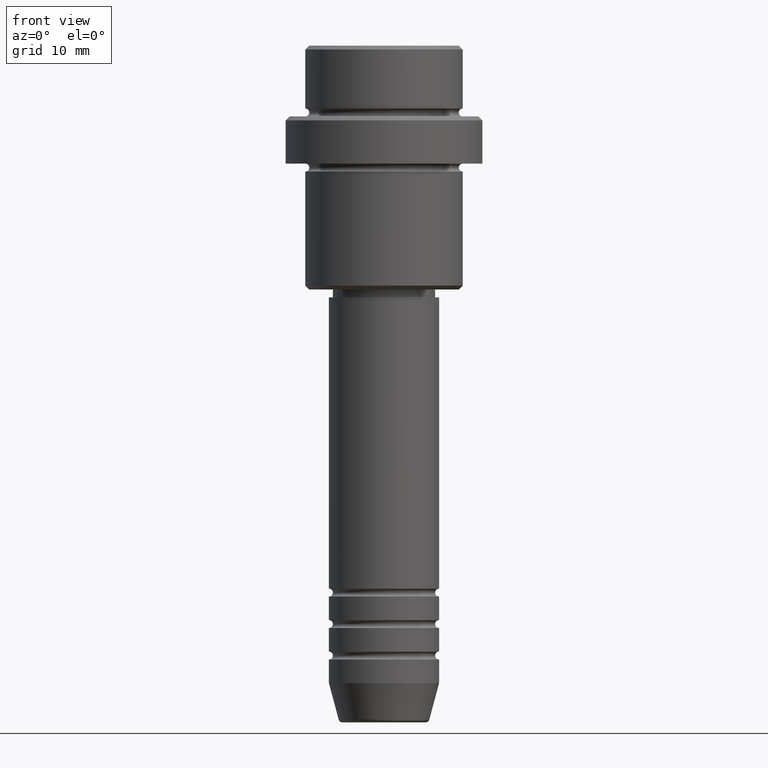
[diagram: clean part render]
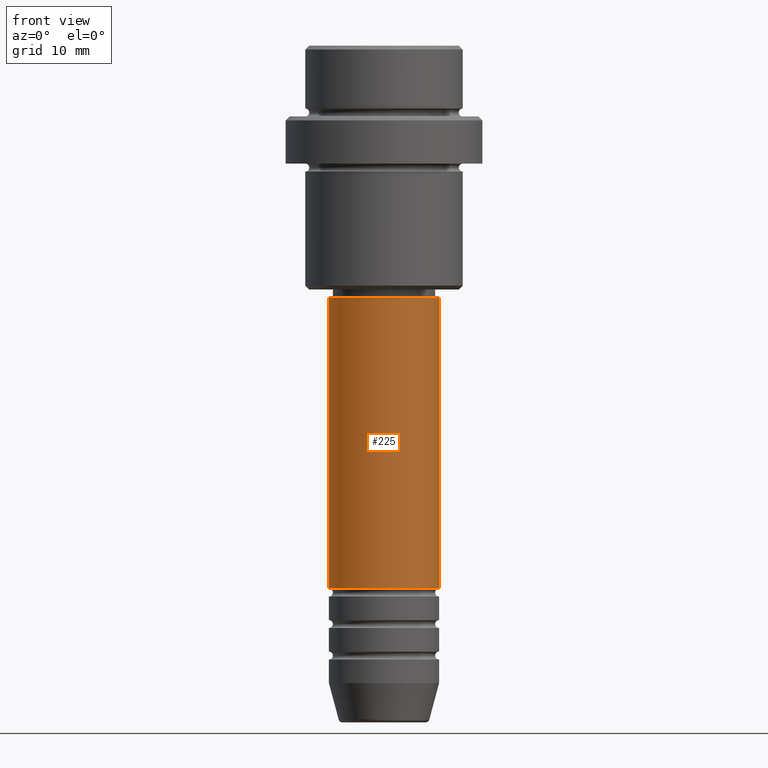
[diagram: same view with one face highlighted and labeled with its STEP entity id]
A machine part, front view. The second image highlights one B-rep face of the part: STEP entity #225.
In plain terms, the highlighted cylindrical surface (partial cylindrical patch) has radius 7 mm, axis along (-0, -0, 1).
Its self-contained STEP definition (entity closure, byte-faithful):
#21 = DIRECTION ( 'NONE',  ( 1.000000000000000000, 0.000000000000000000, 0.000000000000000000 ) ) ;
#61 = VERTEX_POINT ( 'NONE', #527 ) ;
#101 = CARTESIAN_POINT ( 'NONE',  ( 0.000000000000000000, 0.000000000000000000, -32.00000000000000000 ) ) ;
#144 = ORIENTED_EDGE ( 'NONE', *, *, #945, .T. ) ;
#187 = CARTESIAN_POINT ( 'NONE',  ( 0.000000000000000000, 0.000000000000000000, -68.99999999999990052 ) ) ;
#203 = DIRECTION ( 'NONE',  ( 1.000000000000000000, 0.000000000000000000, 0.000000000000000000 ) ) ;
#208 = DIRECTION ( 'NONE',  ( -0.000000000000000000, -0.000000000000000000, 1.000000000000000000 ) ) ;
#217 = CYLINDRICAL_SURFACE ( 'NONE', #922, 7.000000000000000000 ) ;
#225 = ADVANCED_FACE ( 'NONE', ( #966 ), #217, .T. ) ;
#231 = DIRECTION ( 'NONE',  ( -0.000000000000000000, -0.000000000000000000, 1.000000000000000000 ) ) ;
#254 = DIRECTION ( 'NONE',  ( -0.000000000000000000, -0.000000000000000000, 1.000000000000000000 ) ) ;
#308 = CARTESIAN_POINT ( 'NONE',  ( -7.000000000000000000, 8.572527594031473190E-16, -32.00000000000000000 ) ) ;
#335 = EDGE_CURVE ( 'NONE', #978, #1000, #907, .T. ) ;
#409 = ORIENTED_EDGE ( 'NONE', *, *, #620, .F. ) ;
#527 = CARTESIAN_POINT ( 'NONE',  ( 7.000000000000000000, 0.000000000000000000, -32.00000000000000000 ) ) ;
#534 = CARTESIAN_POINT ( 'NONE',  ( 0.000000000000000000, 0.000000000000000000, 0.000000000000000000 ) ) ;
#536 = DIRECTION ( 'NONE',  ( -0.000000000000000000, -0.000000000000000000, 1.000000000000000000 ) ) ;
#567 = VECTOR ( 'NONE', #231, 1000.000000000000000 ) ;
#573 = ORIENTED_EDGE ( 'NONE', *, *, #578, .T. ) ;
#578 = EDGE_CURVE ( 'NONE', #752, #61, #866, .T. ) ;
#620 = EDGE_CURVE ( 'NONE', #1000, #61, #839, .T. ) ;
#649 = CARTESIAN_POINT ( 'NONE',  ( -7.000000000000000000, 8.572527594031473190E-16, -68.99999999999990052 ) ) ;
#690 = DIRECTION ( 'NONE',  ( -0.000000000000000000, -0.000000000000000000, 1.000000000000000000 ) ) ;
#749 = AXIS2_PLACEMENT_3D ( 'NONE', #101, #690, #21 ) ;
#752 = VERTEX_POINT ( 'NONE', #1244 ) ;
#821 = CIRCLE ( 'NONE', #955, 7.000000000000000000 ) ;
#839 = CIRCLE ( 'NONE', #749, 7.000000000000000000 ) ;
#866 = LINE ( 'NONE', #1414, #567 ) ;
#907 = LINE ( 'NONE', #1343, #1378 ) ;
#922 = AXIS2_PLACEMENT_3D ( 'NONE', #534, #208, #1080 ) ;
#945 = EDGE_CURVE ( 'NONE', #978, #752, #821, .T. ) ;
#955 = AXIS2_PLACEMENT_3D ( 'NONE', #187, #536, #203 ) ;
#966 = FACE_OUTER_BOUND ( 'NONE', #1132, .T. ) ;
#978 = VERTEX_POINT ( 'NONE', #649 ) ;
#1000 = VERTEX_POINT ( 'NONE', #308 ) ;
#1080 = DIRECTION ( 'NONE',  ( 1.000000000000000000, 0.000000000000000000, 0.000000000000000000 ) ) ;
#1093 = ORIENTED_EDGE ( 'NONE', *, *, #335, .F. ) ;
#1132 = EDGE_LOOP ( 'NONE', ( #1093, #144, #573, #409 ) ) ;
#1244 = CARTESIAN_POINT ( 'NONE',  ( 7.000000000000000000, 0.000000000000000000, -68.99999999999990052 ) ) ;
#1343 = CARTESIAN_POINT ( 'NONE',  ( -7.000000000000000000, 8.572527594031473190E-16, 0.000000000000000000 ) ) ;
#1378 = VECTOR ( 'NONE', #254, 1000.000000000000000 ) ;
#1414 = CARTESIAN_POINT ( 'NONE',  ( 7.000000000000000000, 0.000000000000000000, 0.000000000000000000 ) ) ;